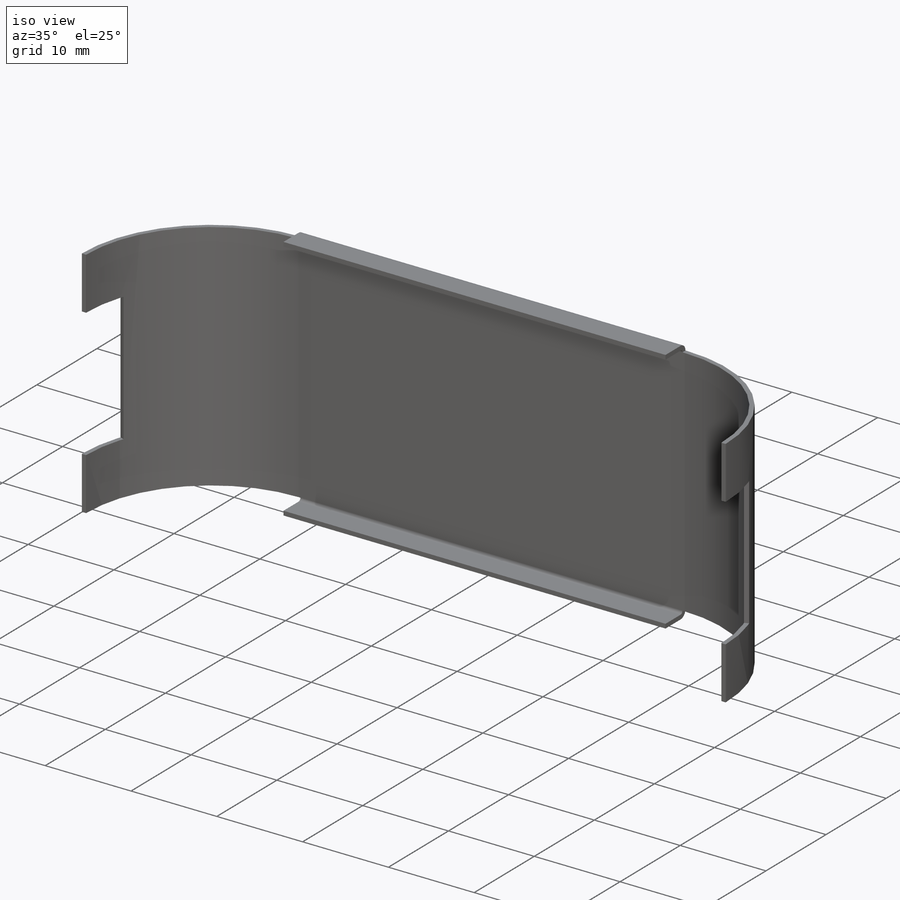
[diagram: iso view]
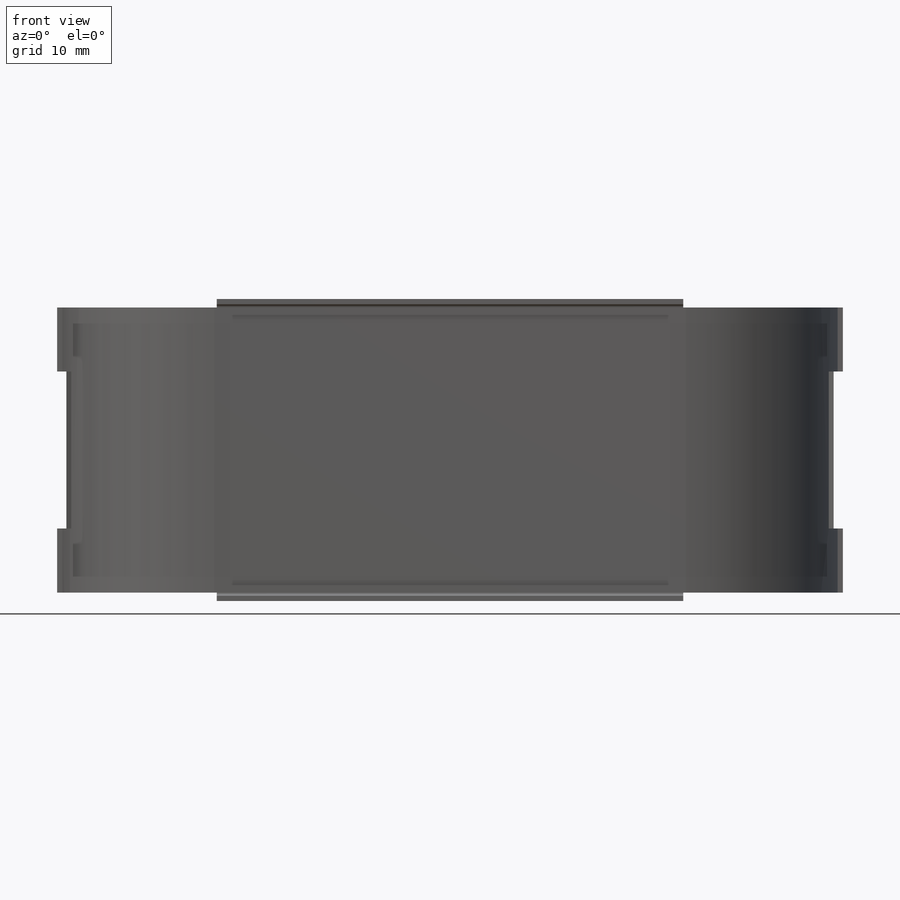
[diagram: front view]
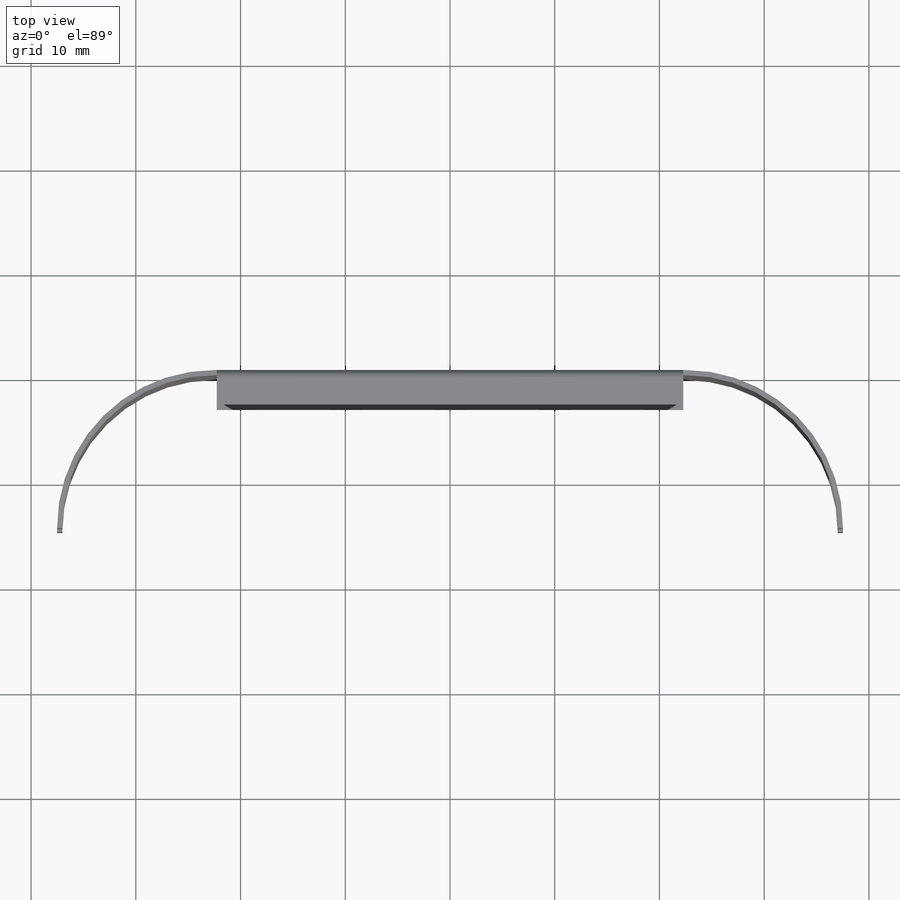
[diagram: top view]
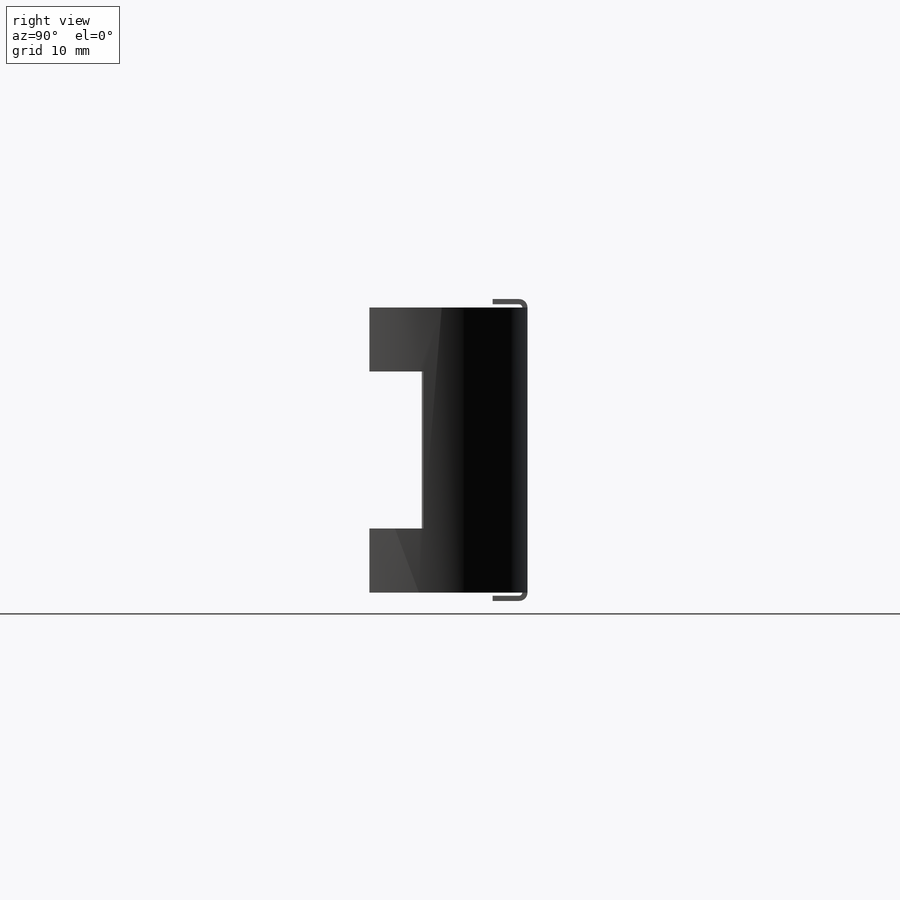
[diagram: right view]
SOLIDWORKS PART (.sldprt)
format: sldprt  version: not decoded by parser v0  size: 645,632 bytes
history: native  units: mm
features: sketch x14, sheet_metal_op x6, mirror x4, plane x3, material x1, cut_extrude x1 + 14 further entries (+9 scaffold rows collapsed; 1 parser-record rows omitted)
feature tree (53):
  scaffold x9  (default folders/planes/origin — collapsed)
  material  "Alu Lochblech"
  plane  "Ebene vorne"
  plane  "Ebene oben"
  plane  "Ebene rechts"
  sketch  "Skizze1"  dims[c1.D1=34.0mm c1.D2=44.53mm c1.D3=12.9623mm c2.D3=~52.674906deg c3.D3=~1047.197551mm c3.D4=~2.956522mm c3.D5=~28.086957mm c3.D1=0.7366mm c3.D2=0.5 c4.D3=0.0deg c4.D6=~28.64789deg]
  sheet_metal_op  "Basis-Blech1"
  sketch  "Skizze2"
  parser-record x1  (decoder bookkeeping rows leaked as tree rows — omitted from the tree; the rows remain in map.json)
  "Skizzenbiegung2"
  sketch  "Skizze5"
  sheet_metal_op  "Kantenbiegung1"
  sketch  "Skizze6"  dims[D1=5.0mm D2=15.0mm]
  cut_extrude  "Schnitt-Linear austragen2"  [1 undecoded]
  mirror  "Spiegeln1"
  "Biegung spiegeln1"
  sketch  "Biegung-Linien1"
  sketch  "Rahmen1"
  sheet_metal_op  "Blech1"
  "Abwicklung1"
  sketch  "Biegung-Linien2"
  sketch  "Rahmen2"  dims[Skizzen-Transformation1=0.0]
  "Abwickeln-<Skizzenbiegung2>1"
  mirror  "Blech14"
  sheet_metal_op  "Abwicklung1"
  sketch  "Biegung-Linien2"
  sketch  "Rahmen2"  dims[Skizzen-Transformation1=0.0]
  "Abwickeln-<Skizzenbiegung1>1"
  "Abwickeln-<Skizzenbiegung2>1"
  "Abwickeln-<Kantenbiegung1>1"
  mirror  "Blech15"
  sheet_metal_op  "Abwicklung1"
  sketch  "Biegung-Linien2"
  sketch  "Rahmen2"  dims[Skizzen-Transformation1=0.0]
  "Abwickeln-<Skizzenbiegung1>1"
  "Abwickeln-<Skizzenbiegung2>1"
  "Abwickeln-<Kantenbiegung1>1"
  mirror  "Blech16"
  sheet_metal_op  "Abwicklung1"
  sketch  "Biegung-Linien2"
  sketch  "Rahmen2"
  "Abwickeln-<Skizzenbiegung1>1"
  "Abwickeln-<Skizzenbiegung2>1"
  "Abwickeln-<Kantenbiegung1>1"
  "Abwickeln-<Biegung spiegeln1>1"  Skizzen-Transformation1=0
decode coverage: 5 of 25 modeling features carry decoded parameters; 14 rows unclassified (native names shown)
note: ~ marks probable driven/reference dimensions
note: 1 parameter value undecoded
note: suppression state not decoded; provenance and decode notes live in map.json
